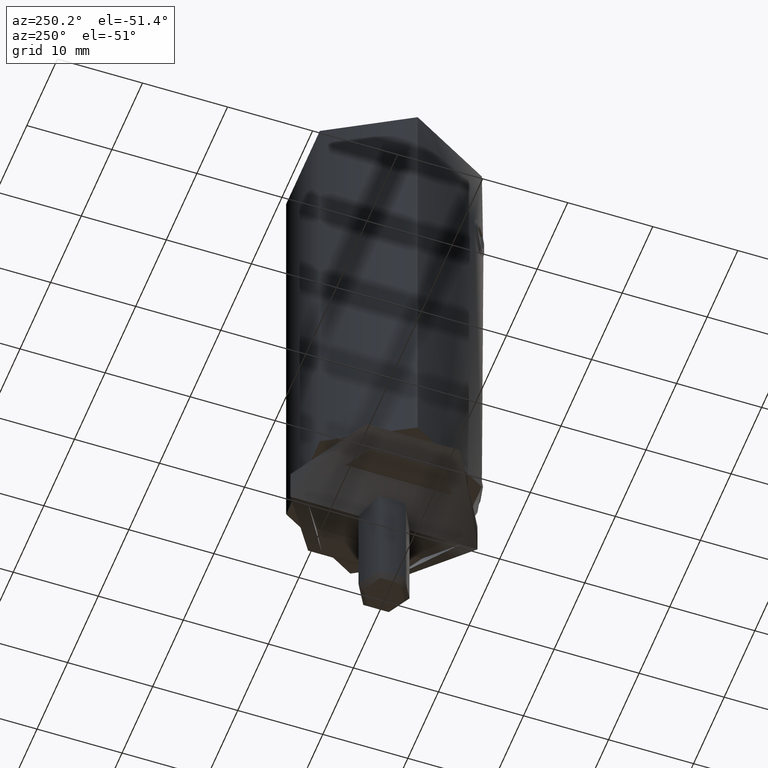
[diagram: clean part render]
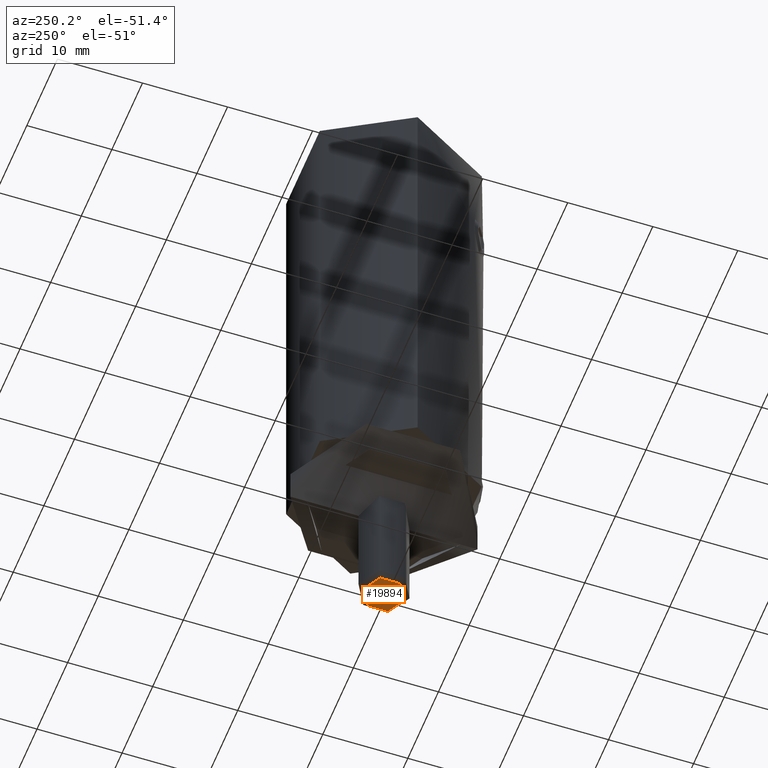
[diagram: same view with one face highlighted and labeled with its STEP entity id]
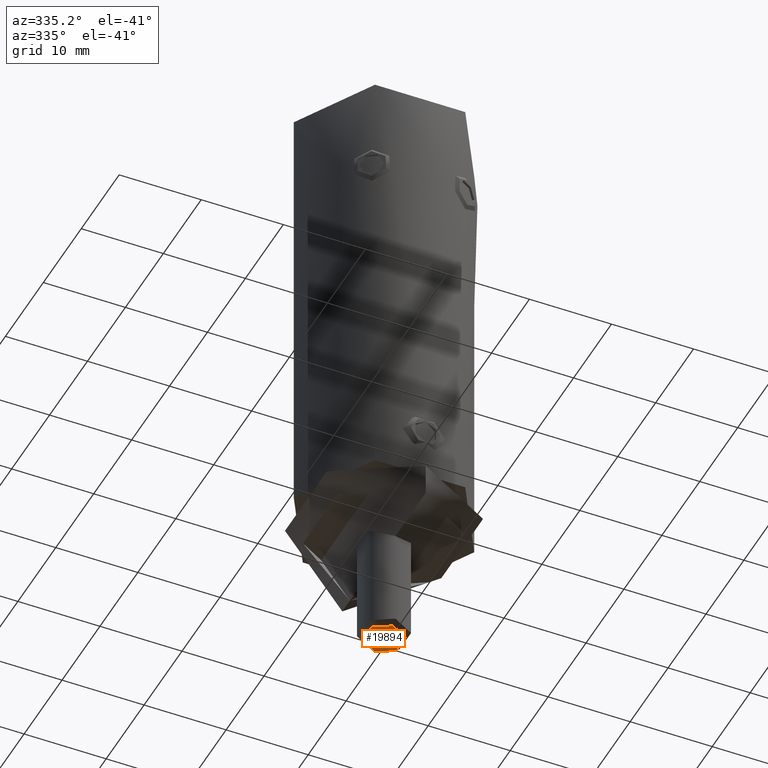
[diagram: same view with one face highlighted and labeled with its STEP entity id]
A machine part, auxiliary view. The second image highlights one B-rep face of the part: STEP entity #19894.
A second angle (auxiliary view) of the same face is appended — the face is thin or edge-on in the first view.
In plain terms, the highlighted planar face has unit normal (-0, 0, -1).
Its self-contained STEP definition (entity closure, byte-faithful):
#715 = DIRECTION ( 'NONE',  ( 7.181444546696669244E-33, -1.000000000000000000, -1.224646799147353207E-16 ) ) ;
#1630 = CARTESIAN_POINT ( 'NONE',  ( 3.306546357697874441E-16, -2.399999999999987921, 25.00000000000000355 ) ) ;
#3274 = DIRECTION ( 'NONE',  ( 7.181444546696759562E-33, -1.000000000000000000, 0.000000000000000000 ) ) ;
#3391 = FACE_OUTER_BOUND ( 'NONE', #12179, .T. ) ;
#4781 = CARTESIAN_POINT ( 'NONE',  ( 4.237045877651918877E-30, -3.061616997868383043E-15, 25.00000000000000355 ) ) ;
#5842 = AXIS2_PLACEMENT_3D ( 'NONE', #14322, #15886, #21196 ) ;
#5846 = PLANE ( 'NONE',  #20176 ) ;
#6943 = CIRCLE ( 'NONE', #5842, 2.399999999999985256 ) ;
#7541 = DIRECTION ( 'NONE',  ( 1.479114197289397135E-31, -1.224646799147353207E-16, 1.000000000000000000 ) ) ;
#8947 = CIRCLE ( 'NONE', #13080, 2.399999999999985256 ) ;
#10893 = ORIENTED_EDGE ( 'NONE', *, *, #15757, .T. ) ;
#11170 = VERTEX_POINT ( 'NONE', #1630 ) ;
#11415 = ORIENTED_EDGE ( 'NONE', *, *, #21037, .T. ) ;
#12179 = EDGE_LOOP ( 'NONE', ( #11415, #10893 ) ) ;
#13080 = AXIS2_PLACEMENT_3D ( 'NONE', #4781, #13365, #3274 ) ;
#13365 = DIRECTION ( 'NONE',  ( 1.479114197289397135E-31, -1.224646799147353207E-16, 1.000000000000000000 ) ) ;
#13370 = VERTEX_POINT ( 'NONE', #15261 ) ;
#14322 = CARTESIAN_POINT ( 'NONE',  ( 4.237045877651918877E-30, -3.061616997868383043E-15, 25.00000000000000355 ) ) ;
#15261 = CARTESIAN_POINT ( 'NONE',  ( 3.299064431100901627E-30, 2.399999999999982148, 25.00000000000000355 ) ) ;
#15757 = EDGE_CURVE ( 'NONE', #11170, #13370, #8947, .T. ) ;
#15886 = DIRECTION ( 'NONE',  ( 1.479114197289397135E-31, -1.224646799147353207E-16, 1.000000000000000000 ) ) ;
#19610 = CARTESIAN_POINT ( 'NONE',  ( 4.237045877651918877E-30, -3.061616997868383043E-15, 25.00000000000000355 ) ) ;
#19894 = ADVANCED_FACE ( 'NONE', ( #3391 ), #5846, .T. ) ;
#20176 = AXIS2_PLACEMENT_3D ( 'NONE', #19610, #7541, #715 ) ;
#21037 = EDGE_CURVE ( 'NONE', #13370, #11170, #6943, .T. ) ;
#21196 = DIRECTION ( 'NONE',  ( 7.181444546696759562E-33, -1.000000000000000000, 0.000000000000000000 ) ) ;